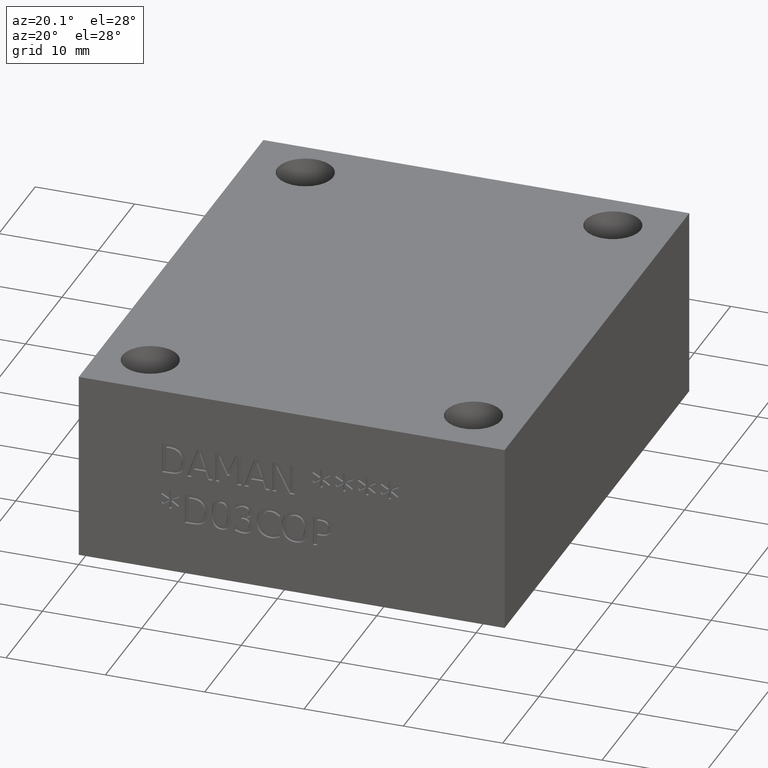
[diagram: clean part render]
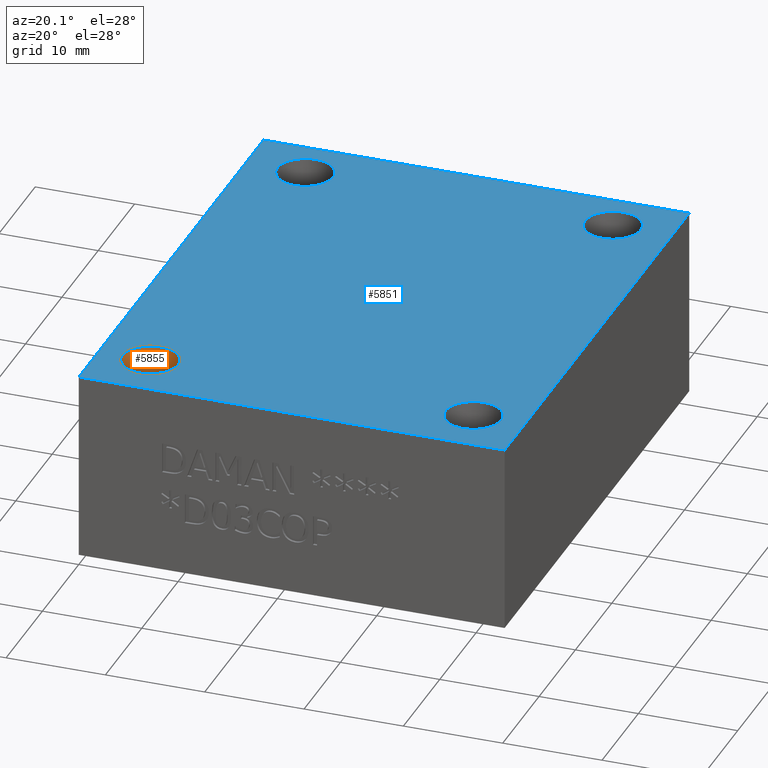
[diagram: same view with the hole feature highlighted: cylindrical wall and planar end face, labeled with their STEP entity ids]
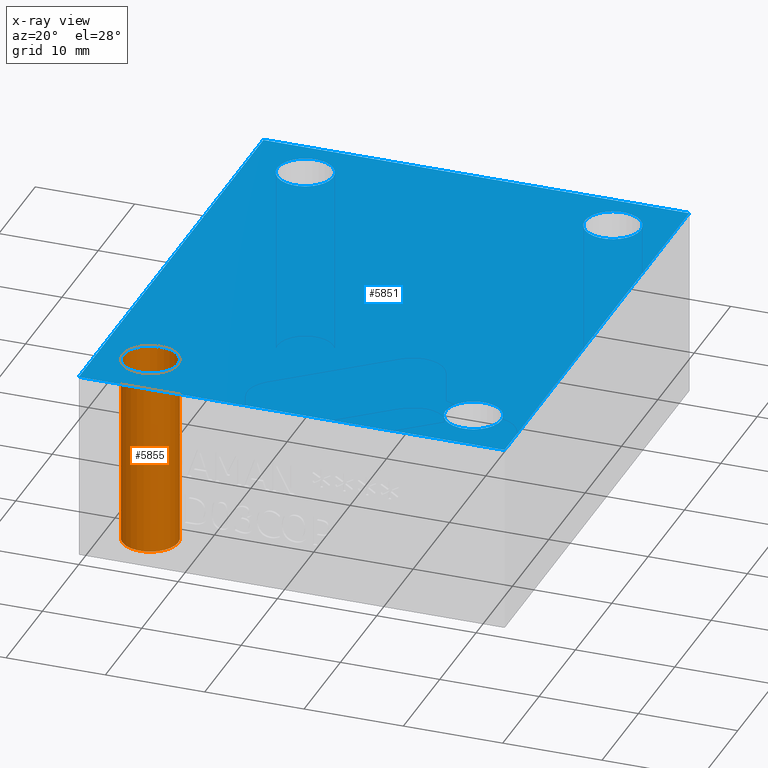
[diagram: x-ray of the same camera — body ghosted, the hole faces saturated]
A machine part, auxiliary view. The highlighted faces form one hole feature of diameter 5.6134 mm: the cylindrical wall (entity #5855, orange) and its adjacent planar end face (entity #5851, blue) — they share a circular edge in the B-rep.
The next image is the same camera in x-ray (body ghosted, the hole faces saturated) — the bore reads through the body.
Wall:
#34=CIRCLE('',#6106,0.1105);
#35=CIRCLE('',#6107,0.1105);
#45=CIRCLE('',#6123,0.1105);
#59=CYLINDRICAL_SURFACE('',#6127,0.1105);
#480=FACE_OUTER_BOUND('',#821,.T.);
#821=EDGE_LOOP('',(#5303,#5304,#5305,#5306,#5307));
#1463=LINE('',#10334,#2099);
#2099=VECTOR('',#7259,0.1105);
#2818=VERTEX_POINT('',#10286);
#2819=VERTEX_POINT('',#10287);
#2831=VERTEX_POINT('',#10325);
#3642=EDGE_CURVE('',#2818,#2819,#34,.T.);
#3643=EDGE_CURVE('',#2819,#2818,#35,.T.);
#3662=EDGE_CURVE('',#2831,#2831,#45,.T.);
#3666=EDGE_CURVE('',#2831,#2819,#1463,.T.);
#5303=ORIENTED_EDGE('',*,*,#3662,.F.);
#5304=ORIENTED_EDGE('',*,*,#3666,.T.);
#5305=ORIENTED_EDGE('',*,*,#3642,.F.);
#5306=ORIENTED_EDGE('',*,*,#3643,.F.);
#5307=ORIENTED_EDGE('',*,*,#3666,.F.);
#5855=ADVANCED_FACE('',(#480),#59,.F.);
#6106=AXIS2_PLACEMENT_3D('',#10288,#7203,#7204);
#6107=AXIS2_PLACEMENT_3D('',#10289,#7205,#7206);
#6123=AXIS2_PLACEMENT_3D('',#10326,#7246,#7247);
#6127=AXIS2_PLACEMENT_3D('',#10333,#7257,#7258);
#7203=DIRECTION('center_axis',(0.,0.,1.));
#7204=DIRECTION('ref_axis',(1.,0.,0.));
#7205=DIRECTION('center_axis',(0.,0.,1.));
#7206=DIRECTION('ref_axis',(1.,0.,0.));
#7246=DIRECTION('center_axis',(0.,0.,-1.));
#7247=DIRECTION('ref_axis',(1.,0.,0.));
#7257=DIRECTION('center_axis',(0.,0.,-1.));
#7258=DIRECTION('ref_axis',(1.,0.,0.));
#7259=DIRECTION('',(0.,0.,-1.));
#10286=CARTESIAN_POINT('',(0.3145,0.218,0.));
#10287=CARTESIAN_POINT('',(0.0935,0.218,0.));
#10288=CARTESIAN_POINT('Origin',(0.204,0.218,0.));
#10289=CARTESIAN_POINT('Origin',(0.204,0.218,0.));
#10325=CARTESIAN_POINT('',(0.0935,0.218,0.75));
#10326=CARTESIAN_POINT('Origin',(0.204,0.218,0.75));
#10333=CARTESIAN_POINT('Origin',(0.204,0.218,0.425));
#10334=CARTESIAN_POINT('',(0.0935,0.218,0.425));
End face:
#42=CIRCLE('',#6120,0.1105);
#43=CIRCLE('',#6121,0.1105);
#44=CIRCLE('',#6122,0.1105);
#45=CIRCLE('',#6123,0.1105);
#91=FACE_BOUND('',#814,.T.);
#92=FACE_BOUND('',#815,.T.);
#93=FACE_BOUND('',#816,.T.);
#94=FACE_BOUND('',#817,.T.);
#476=FACE_OUTER_BOUND('',#813,.T.);
#813=EDGE_LOOP('',(#5280,#5281,#5282,#5283));
#814=EDGE_LOOP('',(#5284));
#815=EDGE_LOOP('',(#5285));
#816=EDGE_LOOP('',(#5286));
#817=EDGE_LOOP('',(#5287));
#1418=LINE('',#10181,#2054);
#1457=LINE('',#10315,#2093);
#1458=LINE('',#10317,#2094);
#1459=LINE('',#10318,#2095);
#2054=VECTOR('',#7102,1.688);
#2093=VECTOR('',#7237,2.);
#2094=VECTOR('',#7238,2.);
#2095=VECTOR('',#7239,1.688);
#2778=VERTEX_POINT('',#10179);
#2779=VERTEX_POINT('',#10180);
#2826=VERTEX_POINT('',#10314);
#2827=VERTEX_POINT('',#10316);
#2828=VERTEX_POINT('',#10319);
#2829=VERTEX_POINT('',#10321);
#2830=VERTEX_POINT('',#10323);
#2831=VERTEX_POINT('',#10325);
#3591=EDGE_CURVE('',#2778,#2779,#1418,.T.);
#3656=EDGE_CURVE('',#2779,#2826,#1457,.T.);
#3657=EDGE_CURVE('',#2827,#2778,#1458,.T.);
#3658=EDGE_CURVE('',#2826,#2827,#1459,.T.);
#3659=EDGE_CURVE('',#2828,#2828,#42,.T.);
#3660=EDGE_CURVE('',#2829,#2829,#43,.T.);
#3661=EDGE_CURVE('',#2830,#2830,#44,.T.);
#3662=EDGE_CURVE('',#2831,#2831,#45,.T.);
#5280=ORIENTED_EDGE('',*,*,#3656,.F.);
#5281=ORIENTED_EDGE('',*,*,#3591,.F.);
#5282=ORIENTED_EDGE('',*,*,#3657,.F.);
#5283=ORIENTED_EDGE('',*,*,#3658,.F.);
#5284=ORIENTED_EDGE('',*,*,#3659,.T.);
#5285=ORIENTED_EDGE('',*,*,#3660,.T.);
#5286=ORIENTED_EDGE('',*,*,#3661,.T.);
#5287=ORIENTED_EDGE('',*,*,#3662,.T.);
#5550=PLANE('',#6119);
#5851=ADVANCED_FACE('',(#476,#91,#92,#93,#94),#5550,.T.);
#6119=AXIS2_PLACEMENT_3D('',#10313,#7235,#7236);
#6120=AXIS2_PLACEMENT_3D('',#10320,#7240,#7241);
#6121=AXIS2_PLACEMENT_3D('',#10322,#7242,#7243);
#6122=AXIS2_PLACEMENT_3D('',#10324,#7244,#7245);
#6123=AXIS2_PLACEMENT_3D('',#10326,#7246,#7247);
#7102=DIRECTION('',(-1.,0.,0.));
#7235=DIRECTION('center_axis',(0.,0.,1.));
#7236=DIRECTION('ref_axis',(1.,0.,0.));
#7237=DIRECTION('',(0.,1.,0.));
#7238=DIRECTION('',(0.,-1.,0.));
#7239=DIRECTION('',(1.,0.,0.));
#7240=DIRECTION('center_axis',(0.,0.,-1.));
#7241=DIRECTION('ref_axis',(1.,0.,0.));
#7242=DIRECTION('center_axis',(0.,0.,-1.));
#7243=DIRECTION('ref_axis',(1.,0.,0.));
#7244=DIRECTION('center_axis',(0.,0.,-1.));
#7245=DIRECTION('ref_axis',(1.,0.,0.));
#7246=DIRECTION('center_axis',(0.,0.,-1.));
#7247=DIRECTION('ref_axis',(1.,0.,0.));
#10179=CARTESIAN_POINT('',(1.688,0.,0.75));
#10180=CARTESIAN_POINT('',(0.,0.,0.75));
#10181=CARTESIAN_POINT('',(1.688,0.,0.75));
#10313=CARTESIAN_POINT('Origin',(0.844,1.,0.75));
#10314=CARTESIAN_POINT('',(0.,2.,0.75));
#10315=CARTESIAN_POINT('',(0.,0.,0.75));
#10316=CARTESIAN_POINT('',(1.688,2.,0.75));
#10317=CARTESIAN_POINT('',(1.688,2.,0.75));
#10318=CARTESIAN_POINT('',(0.,2.,0.75));
#10319=CARTESIAN_POINT('',(0.1245,1.812,0.75));
#10320=CARTESIAN_POINT('Origin',(0.235,1.812,0.75));
#10321=CARTESIAN_POINT('',(1.3435,1.812,0.75));
#10322=CARTESIAN_POINT('Origin',(1.454,1.812,0.75));
#10323=CARTESIAN_POINT('',(1.3745,0.218,0.75));
#10324=CARTESIAN_POINT('Origin',(1.485,0.218,0.75));
#10325=CARTESIAN_POINT('',(0.0935,0.218,0.75));
#10326=CARTESIAN_POINT('Origin',(0.204,0.218,0.75));